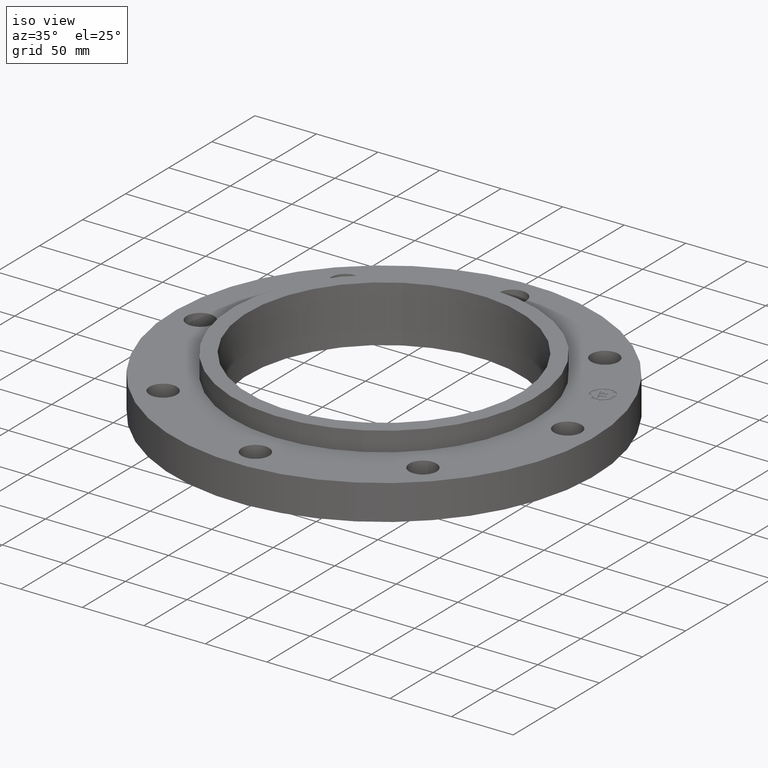
[diagram: clean part render]
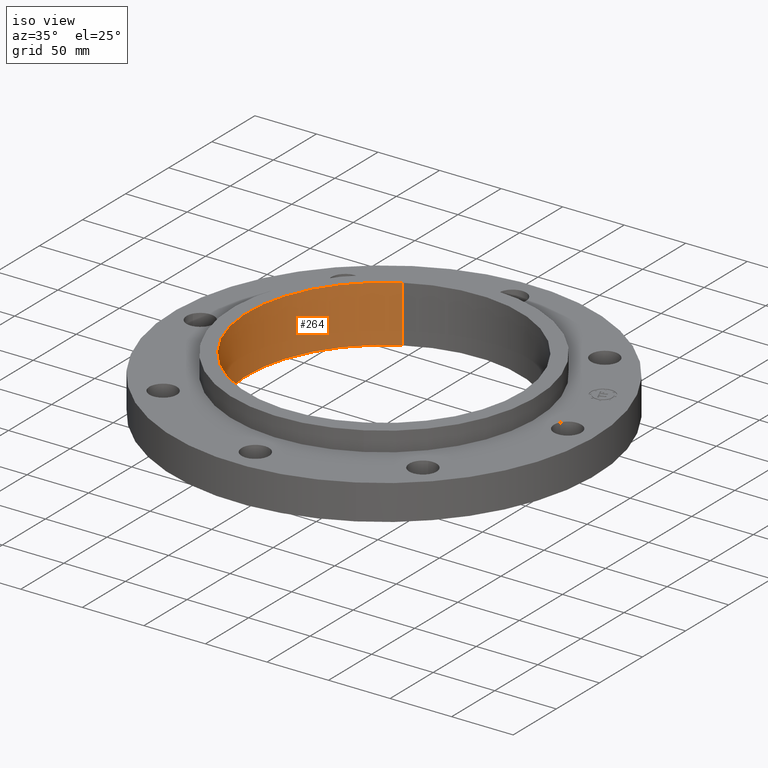
[diagram: same view with one face highlighted and labeled with its STEP entity id]
A machine part, iso view. The second image highlights one B-rep face of the part: STEP entity #264.
In plain terms, the highlighted cylindrical surface (partial cylindrical patch) has radius 110.744 mm, axis along (0, 0, 1).
Its self-contained STEP definition (entity closure, byte-faithful):
#226=AXIS2_PLACEMENT_3D('Circle Axis2P3D',#224,#225,$) ;
#237=AXIS2_PLACEMENT_3D('Cylinder Axis2P3D',#234,#235,#236) ;
#255=AXIS2_PLACEMENT_3D('Circle Axis2P3D',#253,#254,$) ;
#219=CARTESIAN_POINT('Vertex',(2.09029534832,-3.82625996986,-0.0625000000003)) ;
#221=CARTESIAN_POINT('Vertex',(-2.09029534832,3.82625996986,-0.0625000000003)) ;
#224=CARTESIAN_POINT('Axis2P3D Location',(0.,0.,-0.0625000000002)) ;
#234=CARTESIAN_POINT('Axis2P3D Location',(0.,0.,0.843750000003)) ;
#239=CARTESIAN_POINT('Line Origine',(2.09029534832,-3.82625996986,0.843750000003)) ;
#243=CARTESIAN_POINT('Vertex',(2.09029534832,-3.82625996986,1.75000000001)) ;
#246=CARTESIAN_POINT('Line Origine',(-2.09029534832,3.82625996986,0.843750000003)) ;
#250=CARTESIAN_POINT('Vertex',(-2.09029534832,3.82625996986,1.75000000001)) ;
#253=CARTESIAN_POINT('Axis2P3D Location',(0.,0.,1.75000000001)) ;
#225=DIRECTION('Axis2P3D Direction',(0.,0.,0.0393700787402)) ;
#235=DIRECTION('Axis2P3D Direction',(0.,0.,0.0393700787402)) ;
#236=DIRECTION('Axis2P3D XDirection',(0.0188750212049,-0.0345504945626,0.)) ;
#240=DIRECTION('Vector Direction',(0.,0.,0.0393700787402)) ;
#247=DIRECTION('Vector Direction',(0.,0.,0.0393700787402)) ;
#254=DIRECTION('Axis2P3D Direction',(0.,0.,0.0393700787402)) ;
#241=VECTOR('Line Direction',#240,0.0393700787402) ;
#248=VECTOR('Line Direction',#247,0.0393700787402) ;
#259=ORIENTED_EDGE('',*,*,#245,.T.) ;
#260=ORIENTED_EDGE('',*,*,#228,.F.) ;
#261=ORIENTED_EDGE('',*,*,#252,.F.) ;
#262=ORIENTED_EDGE('',*,*,#257,.T.) ;
#264=ADVANCED_FACE('PartBody',(#263),#238,.F.) ;
#227=CIRCLE('generated circle',#226,4.36000000002) ;
#256=CIRCLE('generated circle',#255,4.36000000002) ;
#238=CYLINDRICAL_SURFACE('generated cylinder',#237,4.36000000002) ;
#228=EDGE_CURVE('',#222,#220,#227,.T.) ;
#245=EDGE_CURVE('',#244,#220,#242,.F.) ;
#252=EDGE_CURVE('',#251,#222,#249,.F.) ;
#257=EDGE_CURVE('',#251,#244,#256,.T.) ;
#258=EDGE_LOOP('',(#259,#260,#261,#262)) ;
#263=FACE_OUTER_BOUND('',#258,.T.) ;
#242=LINE('Line',#239,#241) ;
#249=LINE('Line',#246,#248) ;
#220=VERTEX_POINT('',#219) ;
#222=VERTEX_POINT('',#221) ;
#244=VERTEX_POINT('',#243) ;
#251=VERTEX_POINT('',#250) ;